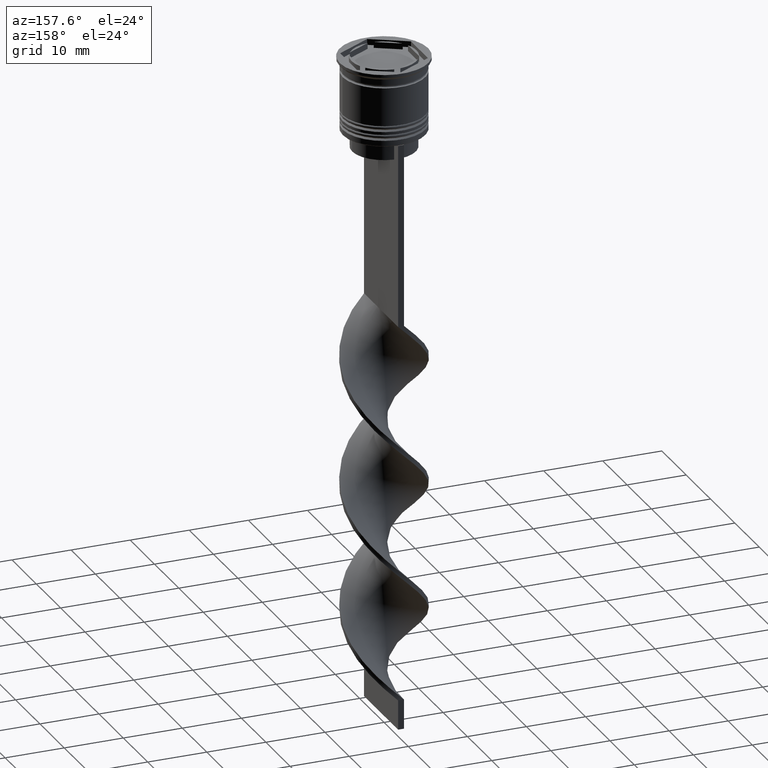
[diagram: clean part render]
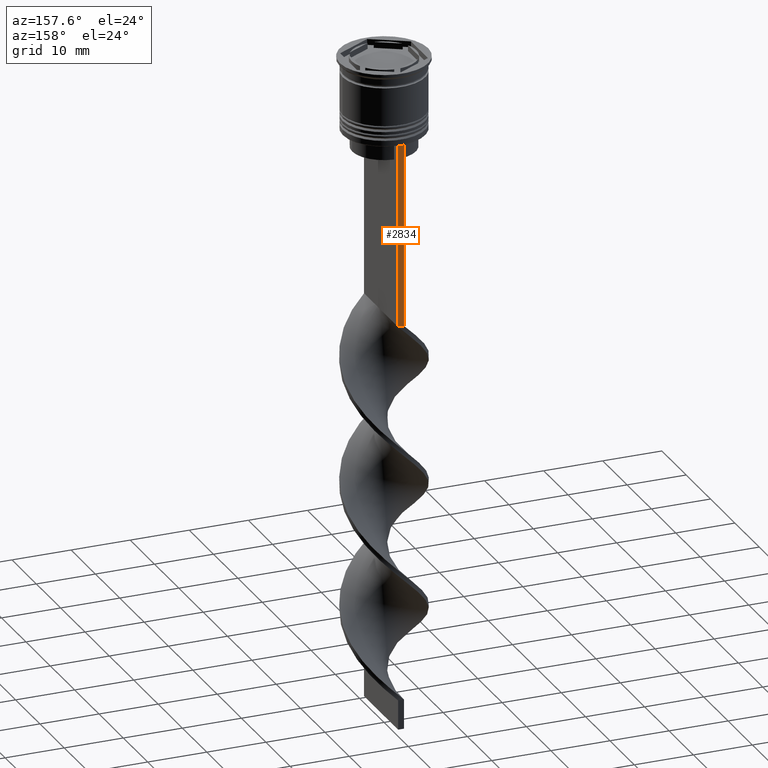
[diagram: same view with one face highlighted and labeled with its STEP entity id]
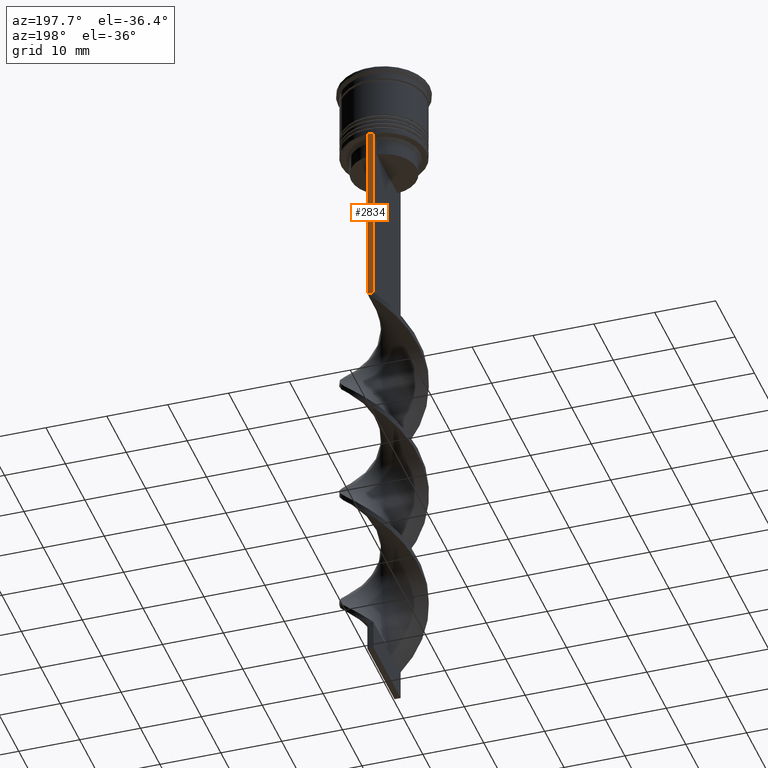
[diagram: same view with one face highlighted and labeled with its STEP entity id]
A machine part, auxiliary view. The second image highlights one B-rep face of the part: STEP entity #2834.
A second angle (auxiliary view) of the same face is appended — the face is thin or edge-on in the first view.
In plain terms, the highlighted planar face has unit normal (0, -1, -0).
Its self-contained STEP definition (entity closure, byte-faithful):
#356 = VERTEX_POINT ( 'NONE', #3600 ) ;
#367 = EDGE_CURVE ( 'NONE', #356, #1446, #2244, .T. ) ;
#473 = CARTESIAN_POINT ( 'NONE',  ( 0.5000000000000000000, 7.000000000000002665, -43.50000000000000000 ) ) ;
#514 = ORIENTED_EDGE ( 'NONE', *, *, #2499, .T. ) ;
#540 = DIRECTION ( 'NONE',  ( 0.000000000000000000, 0.000000000000000000, -1.000000000000000000 ) ) ;
#545 = AXIS2_PLACEMENT_3D ( 'NONE', #1012, #2099, #1215 ) ;
#769 = ORIENTED_EDGE ( 'NONE', *, *, #367, .F. ) ;
#802 = VERTEX_POINT ( 'NONE', #3439 ) ;
#1012 = CARTESIAN_POINT ( 'NONE',  ( 0.5000000000000000000, 7.000000000000002665, 1.535668847618198329 ) ) ;
#1207 = LINE ( 'NONE', #2868, #2345 ) ;
#1215 = DIRECTION ( 'NONE',  ( 0.000000000000000000, 0.000000000000000000, -1.000000000000000000 ) ) ;
#1318 = CARTESIAN_POINT ( 'NONE',  ( -0.5000000000000000000, 7.000000000000002665, -43.50000000000000000 ) ) ;
#1412 = DIRECTION ( 'NONE',  ( 1.000000000000000000, 0.000000000000000000, 0.000000000000000000 ) ) ;
#1446 = VERTEX_POINT ( 'NONE', #1318 ) ;
#1511 = ORIENTED_EDGE ( 'NONE', *, *, #2625, .T. ) ;
#1807 = VECTOR ( 'NONE', #1412, 1000.000000000000000 ) ;
#1887 = LINE ( 'NONE', #473, #2926 ) ;
#1902 = DIRECTION ( 'NONE',  ( -1.000000000000000000, 0.000000000000000000, 0.000000000000000000 ) ) ;
#1931 = EDGE_CURVE ( 'NONE', #802, #2520, #1207, .T. ) ;
#2099 = DIRECTION ( 'NONE',  ( 0.000000000000000000, -1.000000000000000000, -0.000000000000000000 ) ) ;
#2244 = LINE ( 'NONE', #2509, #2755 ) ;
#2343 = FACE_OUTER_BOUND ( 'NONE', #2444, .T. ) ;
#2345 = VECTOR ( 'NONE', #2576, 1000.000000000000000 ) ;
#2444 = EDGE_LOOP ( 'NONE', ( #769, #1511, #3142, #514 ) ) ;
#2499 = EDGE_CURVE ( 'NONE', #2520, #1446, #1887, .T. ) ;
#2509 = CARTESIAN_POINT ( 'NONE',  ( -0.5000000000000000000, 7.000000000000002665, 1.535668847618198329 ) ) ;
#2520 = VERTEX_POINT ( 'NONE', #2569 ) ;
#2569 = CARTESIAN_POINT ( 'NONE',  ( 0.5000000000000000000, 7.000000000000002665, -43.50000000000000000 ) ) ;
#2576 = DIRECTION ( 'NONE',  ( 0.000000000000000000, 0.000000000000000000, -1.000000000000000000 ) ) ;
#2625 = EDGE_CURVE ( 'NONE', #356, #802, #3348, .T. ) ;
#2755 = VECTOR ( 'NONE', #540, 1000.000000000000000 ) ;
#2832 = CARTESIAN_POINT ( 'NONE',  ( 0.5000000000000000000, 7.000000000000002665, -12.50000000000000000 ) ) ;
#2834 = ADVANCED_FACE ( 'NONE', ( #2343 ), #3455, .F. ) ;
#2868 = CARTESIAN_POINT ( 'NONE',  ( 0.5000000000000000000, 7.000000000000002665, 1.535668847618198329 ) ) ;
#2926 = VECTOR ( 'NONE', #1902, 1000.000000000000000 ) ;
#3142 = ORIENTED_EDGE ( 'NONE', *, *, #1931, .T. ) ;
#3348 = LINE ( 'NONE', #2832, #1807 ) ;
#3439 = CARTESIAN_POINT ( 'NONE',  ( 0.5000000000000000000, 7.000000000000002665, -12.50000000000000000 ) ) ;
#3455 = PLANE ( 'NONE',  #545 ) ;
#3600 = CARTESIAN_POINT ( 'NONE',  ( -0.5000000000000000000, 7.000000000000002665, -12.50000000000000000 ) ) ;